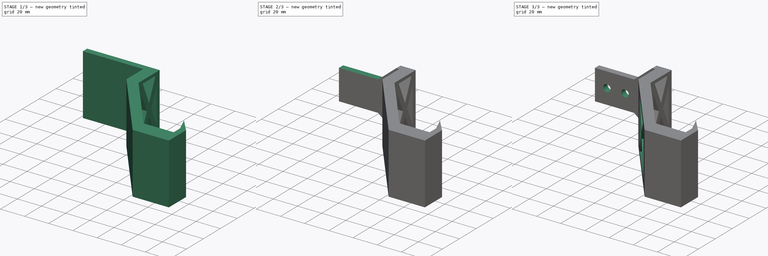
[diagram: build sequence overview — one tinted view per stage of 3, left to right]
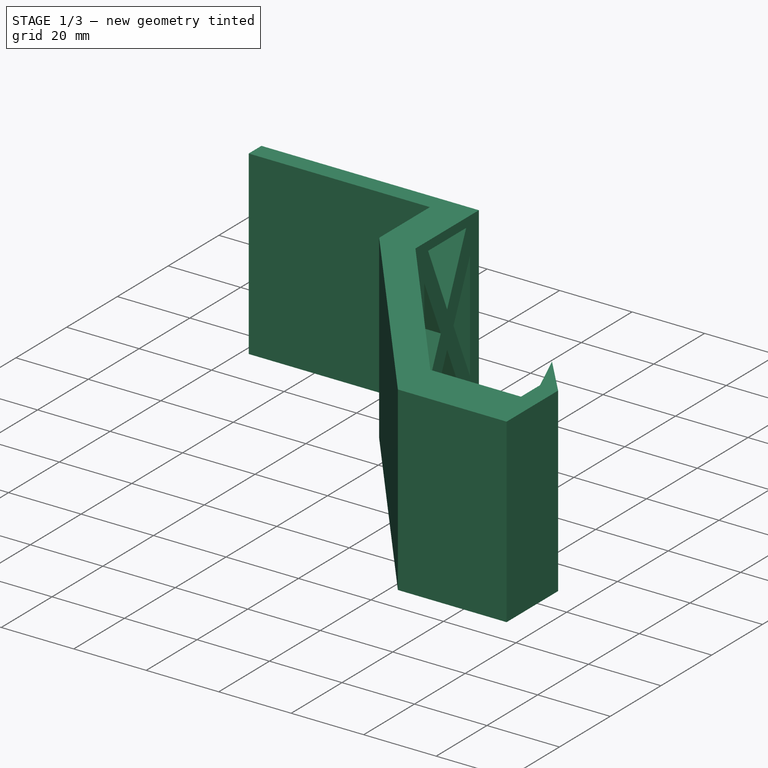
[diagram: stage 1 of 3 — iso view after this stage's code; geometry added in this stage tinted green]
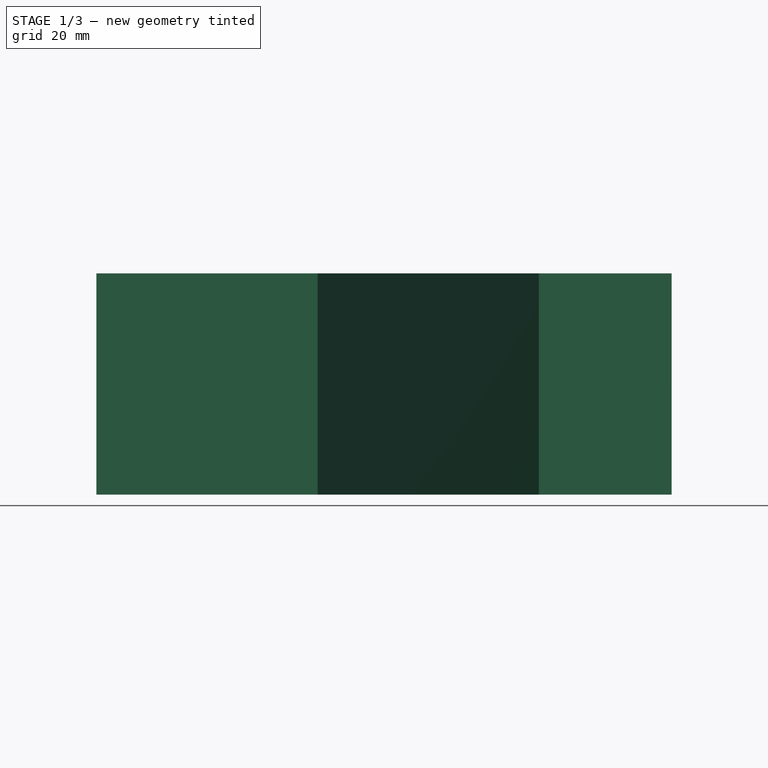
[diagram: stage 1 of 3 — front view after this stage's code; geometry added in this stage tinted green]
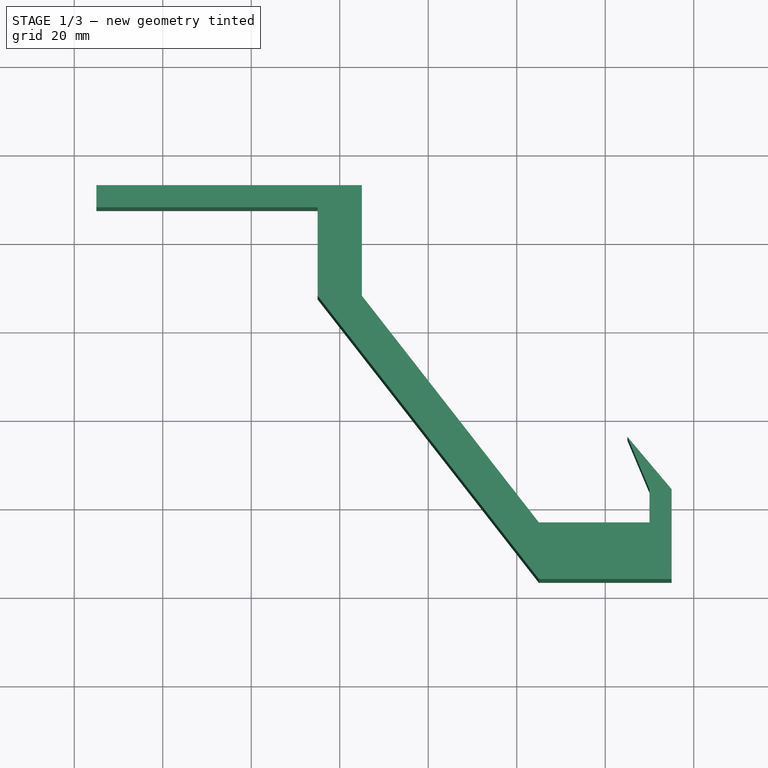
[diagram: stage 1 of 3 — top view after this stage's code; geometry added in this stage tinted green]
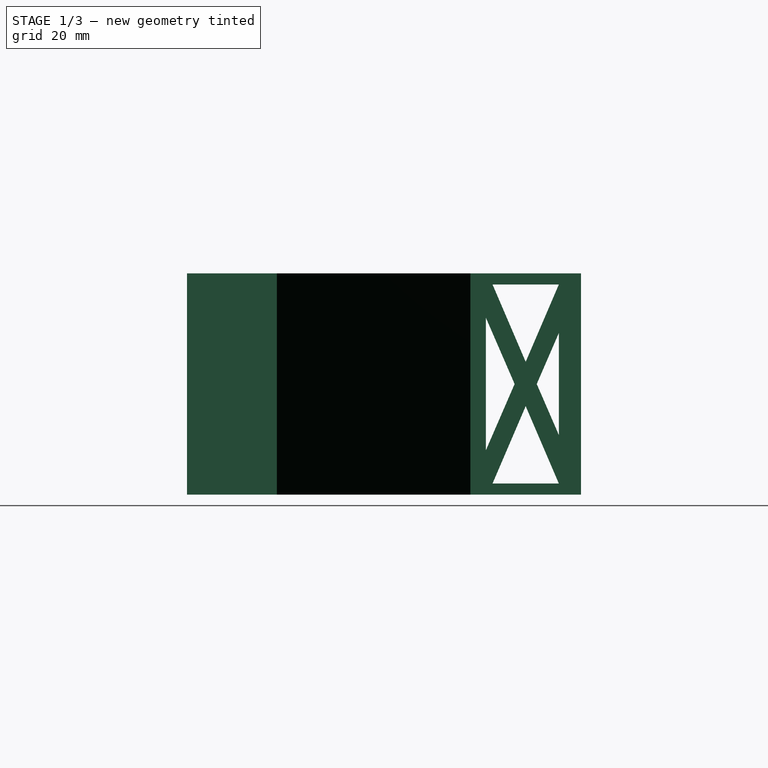
[diagram: stage 1 of 3 — right view after this stage's code; geometry added in this stage tinted green]
FCSTD DOCUMENT  (FreeCAD 0.18R4 (GitTag))
Label: ControllerHolder
License: All rights reserved
LicenseURL: http://en.wikipedia.org/wiki/All_rights_reserved
objects: Sketcher::SketchObject×9, PartDesign::Pocket×4, PartDesign::Pad×1, PartDesign::Hole×1, PartDesign::Body×1, App::MeasureDistance×1
note: 22 computed .brp shape members not serialized (recipe doc carries the construction recipe); baked Part::Feature solids carry a one-line shape summary decoded from their .brp

FEATURE [Sketcher::SketchObject] Sketch
  sketch-geometry (13):
    g0: LineSegment StartX=5 StartY=92.5 StartZ=0 EndX=65 EndY=92.5 EndZ=0
    g1: LineSegment StartX=5 StartY=92.5 StartZ=0 EndX=5 EndY=87.5 EndZ=0
    g2: LineSegment StartX=55 StartY=87.5 StartZ=0 EndX=5 EndY=87.5 EndZ=0
    g3: LineSegment StartX=55 StartY=87.5 StartZ=0 EndX=55 EndY=67.5 EndZ=0
    g4: LineSegment StartX=65 StartY=67.5 StartZ=0 EndX=105 EndY=16.2652 EndZ=0
    g5: LineSegment StartX=105 StartY=16.2652 StartZ=0 EndX=130 EndY=16.2652 EndZ=0
    g6: LineSegment StartX=130 StartY=16.2652 StartZ=0 EndX=130 EndY=23.7652 EndZ=0
    g7: LineSegment StartX=125 StartY=35.6302 StartZ=0 EndX=130 EndY=23.7652 EndZ=0
    g8: LineSegment StartX=65 StartY=67.5 StartZ=0 EndX=65 EndY=92.5 EndZ=0
    g9: LineSegment StartX=55 StartY=67.5 StartZ=0 EndX=105 EndY=3.45656 EndZ=0
    g10: LineSegment StartX=135 StartY=3.45656 StartZ=0 EndX=105 EndY=3.45656 EndZ=0
    g11: LineSegment StartX=135 StartY=3.45656 StartZ=0 EndX=135 EndY=23.7652 EndZ=0
    g12: LineSegment StartX=135 StartY=23.7652 StartZ=0 EndX=125 EndY=35.6302 EndZ=0
  constraints (39):
    c: DistanceX(g-1,g0) = 5
    c: DistanceY(g-1,g0) = 92.5
    c: DistanceX(g0,g0) = 60
    c: Horizontal(g0)
    c: Vertical(g1)
    c: DistanceY(g1,g1) = 5
    c: Coincident(g1,g0)
    c: Coincident(g2,g1)
    c: DistanceX(g2,g2) = 50
    c: Horizontal(g2)
    c: Coincident(g3,g2)
    c: Vertical(g3)
    c: DistanceY(g3,g3) = 20
    c: Distance(g4) = 65
    c: Coincident(g5,g4)
    c: Horizontal(g5)
    c: DistanceX(g5,g5) = 25
    c: Coincident(g6,g5)
    c: Vertical(g6)
    c: DistanceY(g6,g6) = 7.5
    c: Coincident(g7,g6)
    c: DistanceX(g7,g6) = 5
    c: Coincident(g8,g0)
    c: Parallel(g8,g3)
    c: DistanceY(g3,g8) = 0
    c: Coincident(g8,g4)
    c: Parallel(g4,g9)
    c: Coincident(g9,g3)
    c: DistanceX(g9,g4) = 0
    c: Parallel(g5,g10)
    c: Coincident(g9,g10)
    c: DistanceX(g10,g10) = 30
    c: Coincident(g11,g10)
    c: Parallel(g6,g11)
    c: DistanceY(g6,g11) = 0
    c: Coincident(g12,g7)
    c: Coincident(g12,g11)
    c: DistanceX(g3,g9) = 50
    c: Distance(g7,g5) = 20
FEATURE [PartDesign::Pad] Pad
  Length = 50
  Length2 = 100
  Profile = -> Sketch
  Type = 0
FEATURE [Sketcher::SketchObject] Sketch001
  Placement = pos=(0,0,0) rot=(1,0,0;1.5708rad)
  sketch-geometry (2):
    g0: Circle CenterX=15 CenterY=25 CenterZ=0 NormalX=0 NormalY=0 NormalZ=1 AngleXU=0 Radius=5
    g1: Circle CenterX=30 CenterY=25 CenterZ=0 NormalX=0 NormalY=0 NormalZ=1 AngleXU=0 Radius=5
  constraints (6):
    c: DistanceY(g-1,g0) = 25
    c: DistanceX(g-1,g0) = 15
    c: Radius(g0) = 5
    c: Equal(g1,g0)
    c: DistanceX(g-1,g1) = 30
    c: DistanceY(g-1,g1) = 25
FEATURE [Sketcher::SketchObject] Sketch003
  MapMode = 5
  Placement = pos=(0,92.5,0) rot=(0,0.707107,0.707107;3.14159rad)
  sketch-geometry (4):
    g0: LineSegment StartX=-52.5 StartY=0 StartZ=0 EndX=-37.5 EndY=12.5 EndZ=0
    g1: LineSegment StartX=-5 StartY=12.5 StartZ=0 EndX=-37.5 EndY=12.5 EndZ=0
    g2: LineSegment StartX=-5 StartY=12.5 StartZ=0 EndX=-5 EndY=0 EndZ=0
    g3: LineSegment StartX=-52.5 StartY=0 StartZ=0 EndX=-5 EndY=0 EndZ=0
  constraints (12):
    c: Coincident(g0,g1)
    c: Coincident(g0,g3)
    c: Coincident(g1,g2)
    c: Coincident(g2,g3)
    c: DistanceX(g1,g-1) = 5
    c: DistanceX(g3,g3) = 47.5
    c: DistanceX(g1,g1) = 32.5
    c: DistanceX(g2,g-1) = 5
    c: Horizontal(g3)
    c: Parallel(g1,g3)
    c: DistanceY(g2,g2) = 12.5
    c: DistanceY(g2,g-1) = 0
FEATURE [Sketcher::SketchObject] Sketch004
  MapMode = 5
  Placement = pos=(65,0,0) rot=(0.57735,0.57735,0.57735;2.0944rad)
FEATURE [Sketcher::SketchObject] Sketch005
  MapMode = 5
  Placement = pos=(65,0,0) rot=(0.57735,0.57735,0.57735;2.0944rad)
  sketch-geometry (12):
    g0: LineSegment StartX=72.5 StartY=47.5 StartZ=0 EndX=87.5 EndY=47.5 EndZ=0
    g1: LineSegment StartX=72.5 StartY=47.5 StartZ=0 EndX=80 EndY=30 EndZ=0
    g2: LineSegment StartX=87.5 StartY=47.5 StartZ=0 EndX=80 EndY=30 EndZ=0
    g3: LineSegment StartX=80 StartY=20 StartZ=0 EndX=72.5 EndY=2.5 EndZ=0
    g4: LineSegment StartX=87.5 StartY=2.5 StartZ=0 EndX=80 EndY=20 EndZ=0
    g5: LineSegment StartX=72.5 StartY=2.5 StartZ=0 EndX=87.5 EndY=2.5 EndZ=0
    g6: LineSegment StartX=71 StartY=40 StartZ=0 EndX=77.5 EndY=25 EndZ=0
    g7: LineSegment StartX=71 StartY=10 StartZ=0 EndX=77.5 EndY=25 EndZ=0
    g8: LineSegment StartX=71 StartY=40 StartZ=0 EndX=71 EndY=10 EndZ=0
    g9: LineSegment StartX=82.5 StartY=25 StartZ=0 EndX=89 EndY=40 EndZ=0
    g10: LineSegment StartX=82.5 StartY=25 StartZ=0 EndX=89 EndY=10 EndZ=0
    g11: LineSegment StartX=89 StartY=10 StartZ=0 EndX=89 EndY=40 EndZ=0
  constraints (36):
    c: Coincident(g1,g0)
    c: Coincident(g2,g0)
    c: Coincident(g1,g2)
    c: Equal(g2,g1)
    c: DistanceX(g-1,g1) = 80
    c: DistanceY(g-1,g1) = 30
    c: DistanceY(g-1,g0) = 47.5
    c: DistanceX(g-1,g0) = 72.5
    c: DistanceX(g-1,g0) = 87.5
    c: Coincident(g3,g5)
    c: Coincident(g3,g4)
    c: Coincident(g4,g5)
    c: Equal(g4,g3)
    c: Equal(g4,g2)
    c: Equal(g5,g0)
    c: DistanceX(g-1,g3) = 72.5
    c: DistanceX(g3) = 80
    c: DistanceY(g3) = 20
    c: Coincident(g6,g7)
    c: Coincident(g6,g8)
    c: Coincident(g8,g7)
    c: Coincident(g9,g10)
    c: Coincident(g11,g9)
    c: Coincident(g10,g11)
    c: Equal(g9,g10)
    c: Equal(g10,g7)
    c: Equal(g7,g6)
    c: Equal(g8,g11)
    c: DistanceY(g-1,g6) = 25
    c: DistanceY(g-1,g10) = 10
    c: DistanceY(g-1,g9) = 40
    c: DistanceX(g-1,g6) = 77.5
    c: Vertical(g11)
    c: Vertical(g8)
    c: DistanceX(g1,g9) = 2.5
    c: DistanceX(g-1,g7) = 71
FEATURE [Sketcher::SketchObject] Sketch002
  MapMode = 5
  Placement = pos=(0,92.5,0) rot=(0,0.707107,0.707107;3.14159rad)
  sketch-geometry (4):
    g0: LineSegment StartX=-52.5 StartY=50 StartZ=0 EndX=-37.5 EndY=37.5 EndZ=0
    g1: LineSegment StartX=-5 StartY=37.5 StartZ=0 EndX=-37.5 EndY=37.5 EndZ=0
    g2: LineSegment StartX=-5 StartY=37.5 StartZ=0 EndX=-5 EndY=50 EndZ=0
    g3: LineSegment StartX=-52.5 StartY=50 StartZ=0 EndX=-5 EndY=50 EndZ=0
  constraints (12):
    c: Coincident(g0,g1)
    c: Coincident(g0,g3)
    c: Coincident(g1,g2)
    c: Coincident(g2,g3)
    c: DistanceX(g1,g-1) = 5
    c: DistanceY(g-1,g1) = 37.5
    c: DistanceY(g2,g2) = 12.5
    c: DistanceX(g3,g3) = 47.5
    c: DistanceX(g1,g1) = 32.5
    c: DistanceY(g0,g0) = 12.5
    c: DistanceY(g-1,g0) = 37.5
    c: DistanceX(g2,g-1) = 5
FEATURE [PartDesign::Pocket] Pocket
  BaseFeature = -> Pad
  Length = 10
  Length2 = 100
  Profile = -> Sketch005
  Type = 0
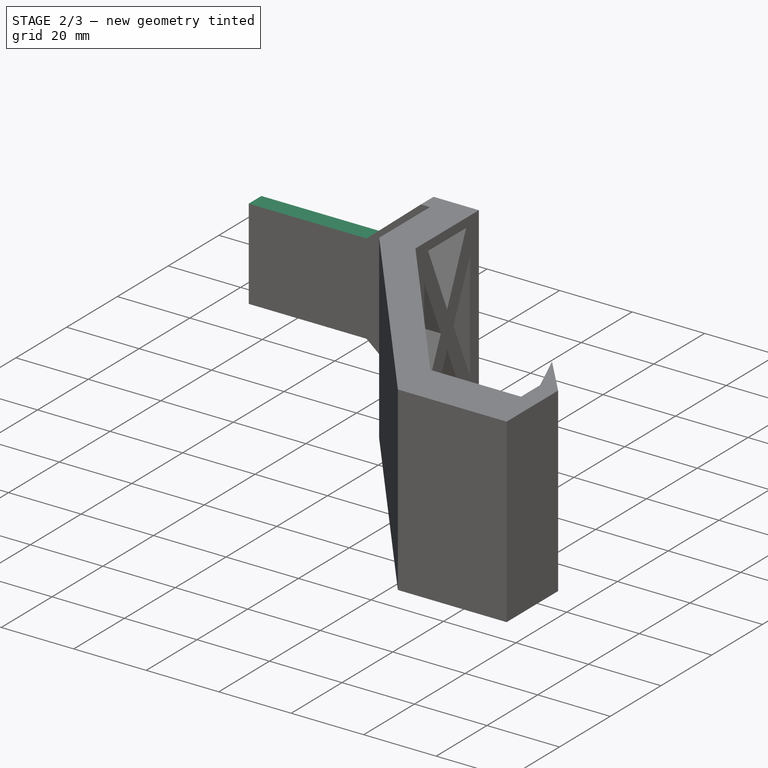
[diagram: stage 2 of 3 — iso view after this stage's code; geometry added in this stage tinted green]
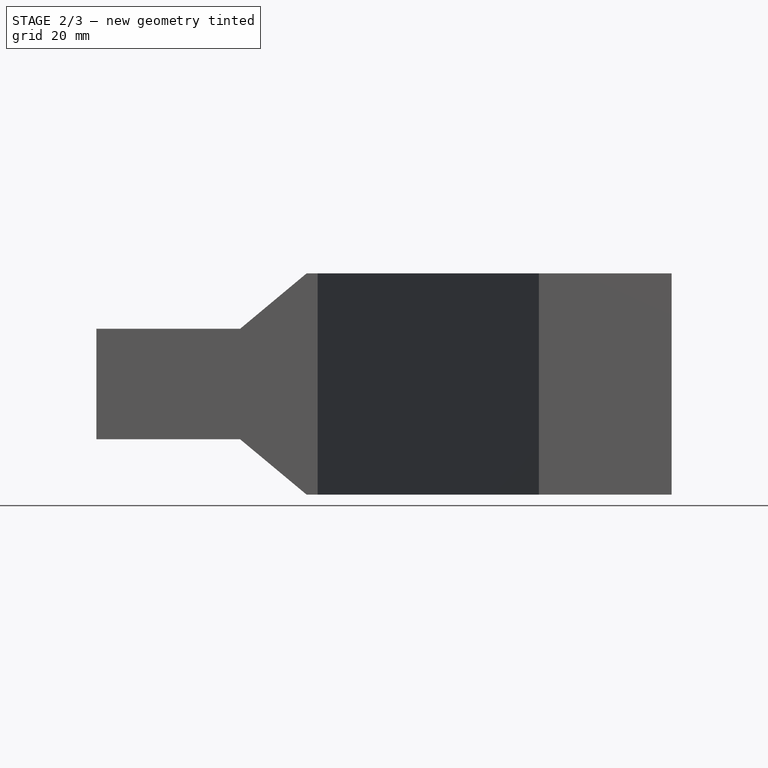
[diagram: stage 2 of 3 — front view after this stage's code; geometry added in this stage tinted green]
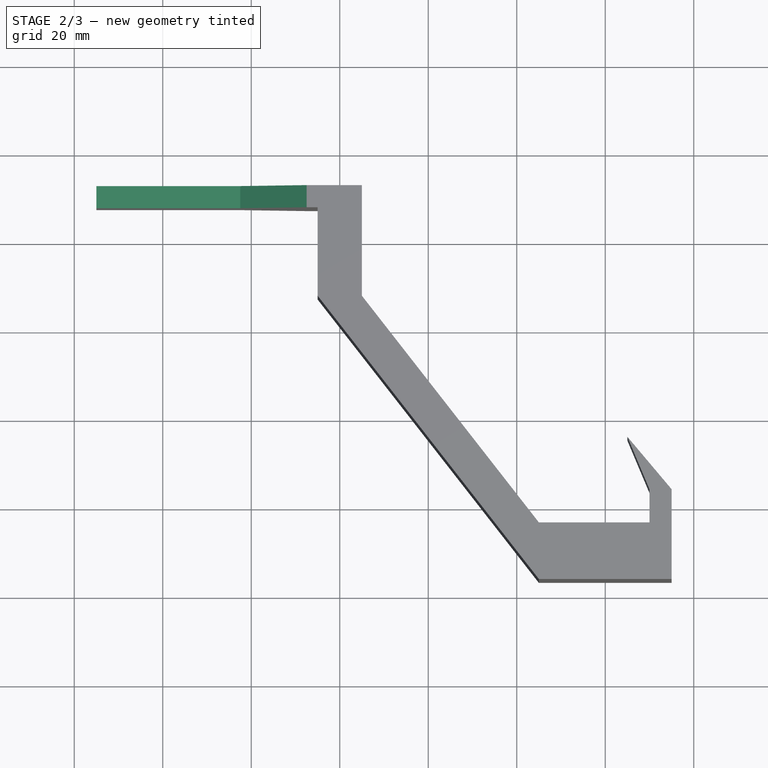
[diagram: stage 2 of 3 — top view after this stage's code; geometry added in this stage tinted green]
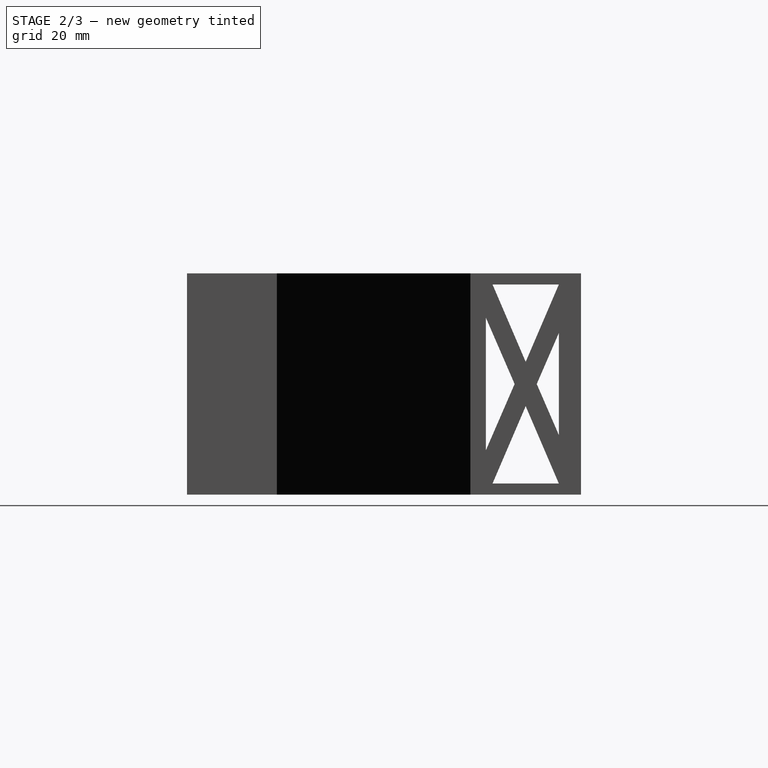
[diagram: stage 2 of 3 — right view after this stage's code; geometry added in this stage tinted green]
FEATURE [PartDesign::Pocket] Pocket001
  BaseFeature = -> Pocket
  Length = 5
  Length2 = 100
  Profile = -> Sketch002
  Type = 0
FEATURE [PartDesign::Pocket] Pocket002
  BaseFeature = -> Pocket001
  Length = 5
  Length2 = 100
  Profile = -> Sketch003
  Type = 0
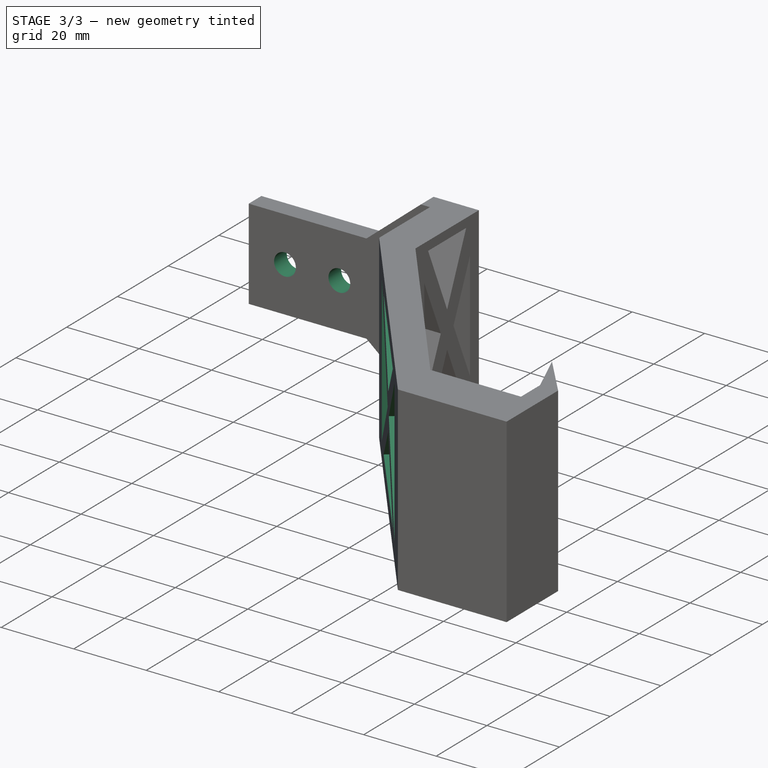
[diagram: stage 3 of 3 — iso view after this stage's code; geometry added in this stage tinted green]
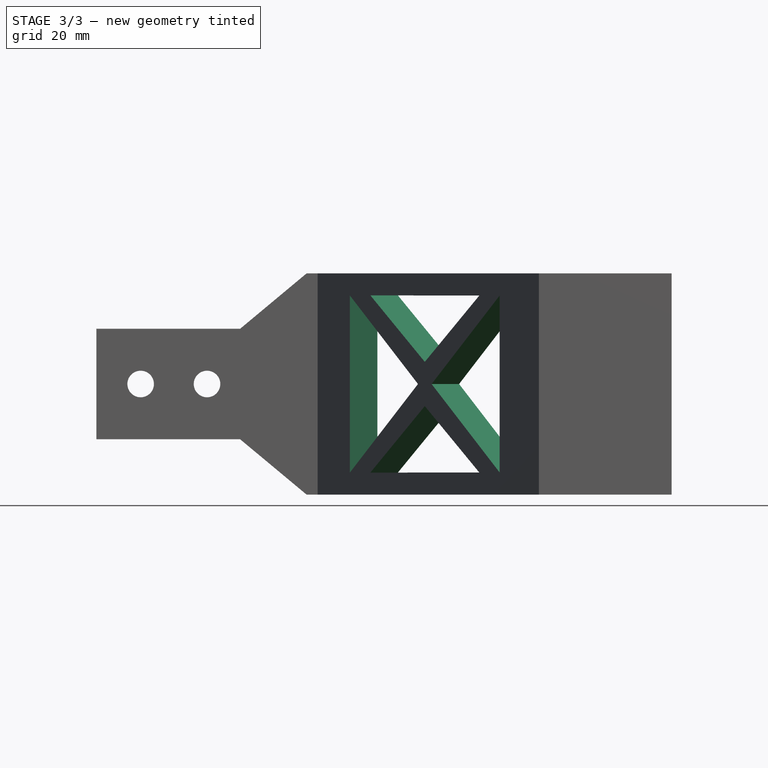
[diagram: stage 3 of 3 — front view after this stage's code; geometry added in this stage tinted green]
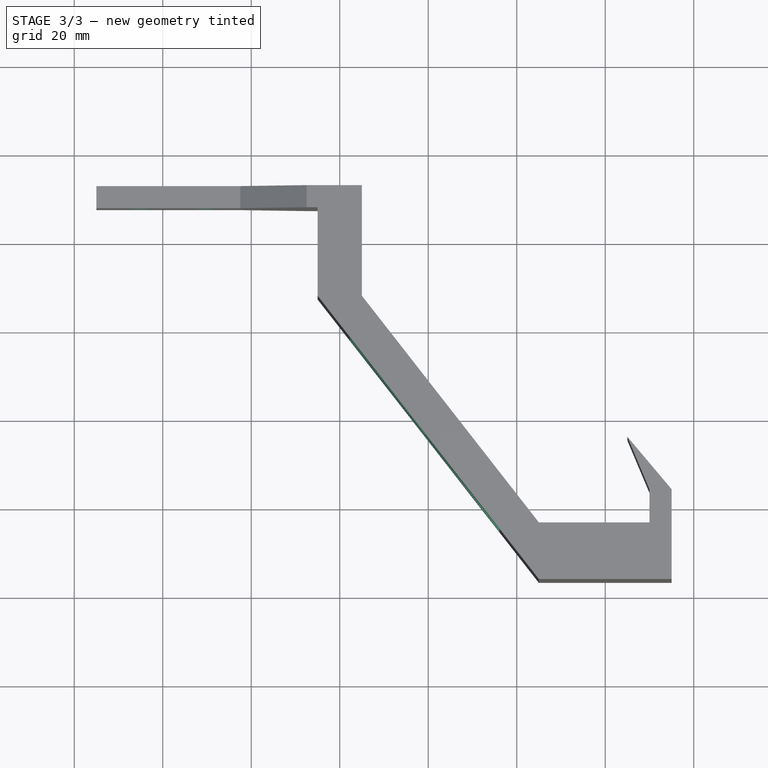
[diagram: stage 3 of 3 — top view after this stage's code; geometry added in this stage tinted green]
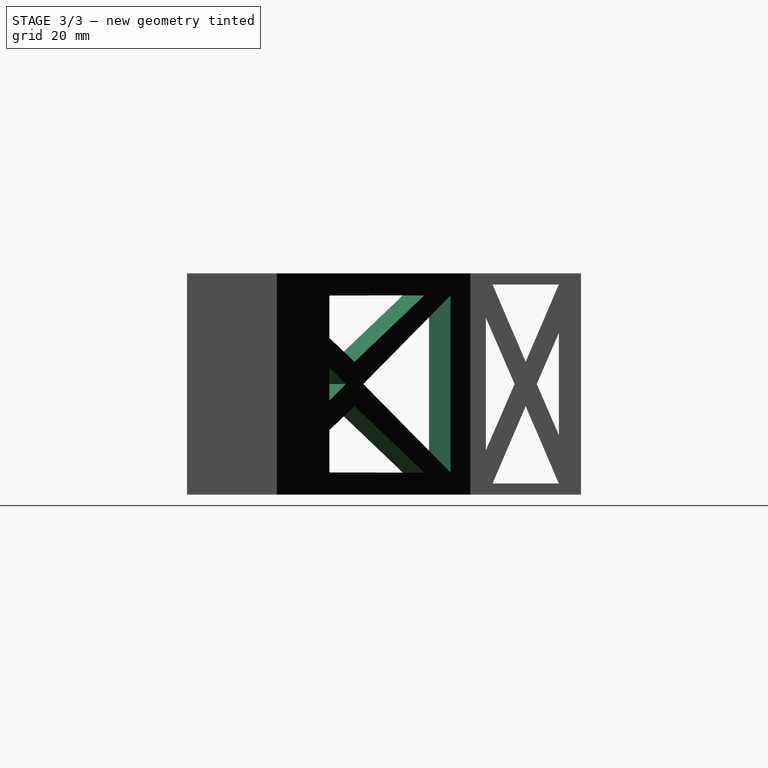
[diagram: stage 3 of 3 — right view after this stage's code; geometry added in this stage tinted green]
FEATURE [Sketcher::SketchObject] Sketch006
  MapMode = 5
  Placement = pos=(73.1264,57.0912,0) rot=(0.326164,0.668437,0.668437;2.51102rad)
  Support = -> [Pocket002]
FEATURE [Sketcher::SketchObject] Sketch007
  MapMode = 5
  Placement = pos=(73.1264,57.0912,0) rot=(0.326164,0.668437,0.668437;2.51102rad)
  Support = -> [Pocket002]
FEATURE [Sketcher::SketchObject] Sketch008
  MapMode = 5
  Placement = pos=(73.1264,57.0912,0) rot=(0.326164,0.668437,0.668437;2.51102rad)
  Support = -> [Pocket002]
  sketch-geometry (12):
    g0: LineSegment StartX=7.5 StartY=5 StartZ=0 EndX=7.5 EndY=45 EndZ=0
    g1: LineSegment StartX=7.5 StartY=45 StartZ=0 EndX=-17.5 EndY=25 EndZ=0
    g2: LineSegment StartX=-17.5 StartY=25 StartZ=0 EndX=7.5 EndY=5 EndZ=0
    g3: LineSegment StartX=-47.5 StartY=5 StartZ=0 EndX=-47.5 EndY=45 EndZ=0
    g4: LineSegment StartX=-47.5 StartY=45 StartZ=0 EndX=-22.5 EndY=25 EndZ=0
    g5: LineSegment StartX=-22.5 StartY=25 StartZ=0 EndX=-47.5 EndY=5 EndZ=0
    g6: LineSegment StartX=-0.005547 StartY=45.0321 StartZ=0 EndX=-40.0241 EndY=44.9926 EndZ=0
    g7: LineSegment StartX=-40.0241 StartY=44.9926 StartZ=0 EndX=-20 EndY=30 EndZ=0
    g8: LineSegment StartX=-0.005547 StartY=45.0321 StartZ=0 EndX=-20 EndY=30 EndZ=0
    g9: LineSegment StartX=-20 StartY=20 StartZ=0 EndX=0 EndY=4.97527 EndZ=0
    g10: LineSegment StartX=-20 StartY=20 StartZ=0 EndX=-40.0186 EndY=5 EndZ=0
    g11: LineSegment StartX=-40.0186 StartY=5 StartZ=0 EndX=0 EndY=4.97527 EndZ=0
  constraints (36):
    c: DistanceX(g0) = 7.5
    c: DistanceY(g0) = 5
    c: Coincident(g0,g2)
    c: Coincident(g0,g1)
    c: Coincident(g1,g2)
    c: Equal(g2,g1)
    c: DistanceY(g0,g0) = 40
    c: DistanceX(g-1,g0) = 7.5
    c: DistanceX(g1,g0) = 25
    c: Coincident(g5,g3)
    c: Coincident(g3,g4)
    c: Coincident(g4,g5)
    c: Equal(g5,g4)
    c: Equal(g3,g0)
    c: Equal(g2,g5)
    c: DistanceY(g4,g1) = 0
    c: DistanceY(g-1,g3) = 5
    c: DistanceX(g4,g1) = 5
    c: Coincident(g6,g8)
    c: Coincident(g6,g7)
    c: Coincident(g7,g8)
    c: Equal(g8,g7)
    c: DistanceX(g7) = -20
    c: DistanceY(g7) = 30
    c: Coincident(g9,g10)
    c: Coincident(g9,g11)
    c: Coincident(g10,g11)
    c: Equal(g9,g10)
    c: Equal(g9,g8)
    c: Equal(g6,g11)
    c: DistanceX(g9) = -20
    c: DistanceY(g9) = 20
    c: DistanceX(g9) = 0
    c: DistanceX(g6) = -0.005547
    c: DistanceY(g6) = 45.0321
    c: DistanceY(g-1,g10) = 5
FEATURE [PartDesign::Pocket] Pocket003
  BaseFeature = -> Pocket002
  Length = 5
  Length2 = 100
  Profile = -> Sketch008
  Type = 1
FEATURE [PartDesign::Hole] Hole
  BaseFeature = -> Pocket003
  Depth = 25
  DepthType = 1
  Diameter = 6
  DrillPoint = 1
  DrillPointAngle = 118
  HoleCutCountersinkAngle = 90
  HoleCutDepth = 0
  HoleCutDiameter = 0
  HoleCutType = 0
  ModelActualThread = false
  Profile = -> Sketch001
  Tapered = false
  TaperedAngle = 90
  ThreadAngle = 0
  ThreadClass = 0
  ThreadCutOffInner = 0
  ThreadCutOffOuter = 0
  ThreadDirection = 0
  ThreadFit = 0
  ThreadPitch = 0
  ThreadSize = 0
  ThreadType = 0
  Threaded = false
FEATURE [PartDesign::Body] Body
  Group = -> [Sketch,Sketch001,Pad,Sketch002,Sketch003,Sketch004,Sketch005,Pocket,Pocket001,Pocket002,Sketch006,Sketch007,Sketch008,Pocket003,Hole]
  Origin = -> Origin
  Tip = -> Hole
FEATURE [App::MeasureDistance] Distance  label="Distance: 16.92 mm"
  Distance = 16.9161
  P1 = (125,32.4255,0)
  P2 = (130,16.2652,0)
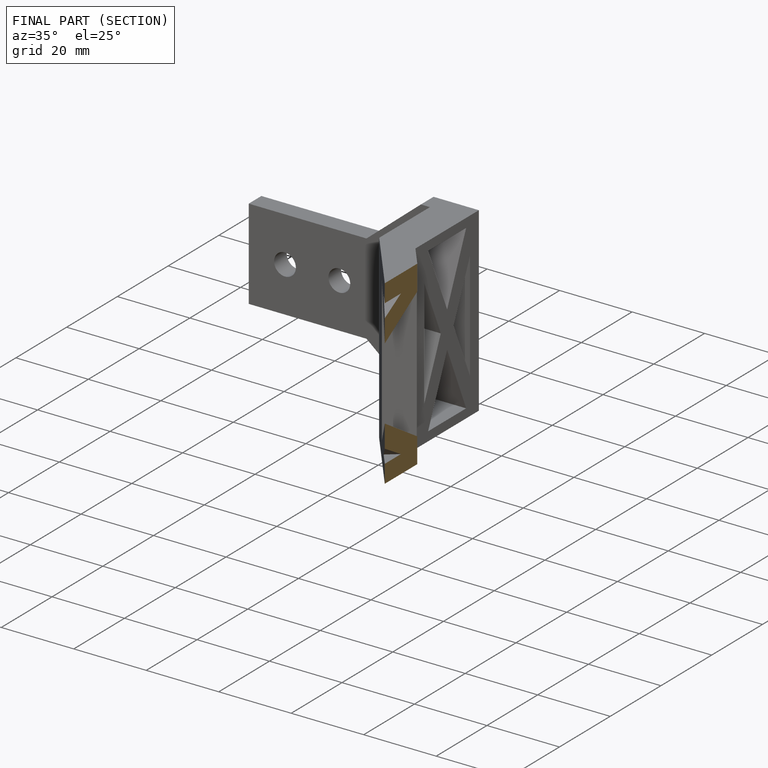
[diagram: finished part — half-section view (interior)]
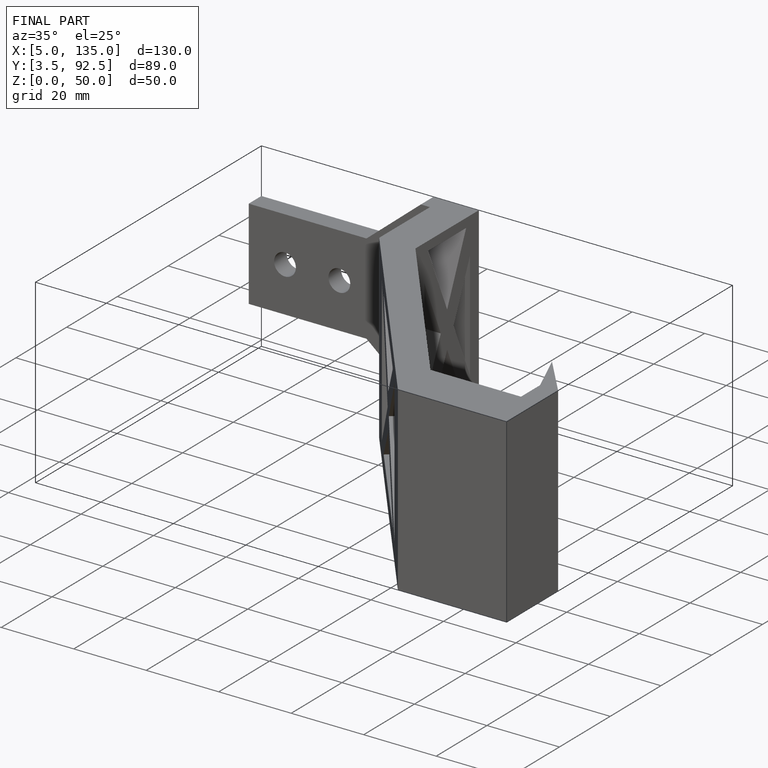
[diagram: finished part — iso view with bounding-box wireframe]
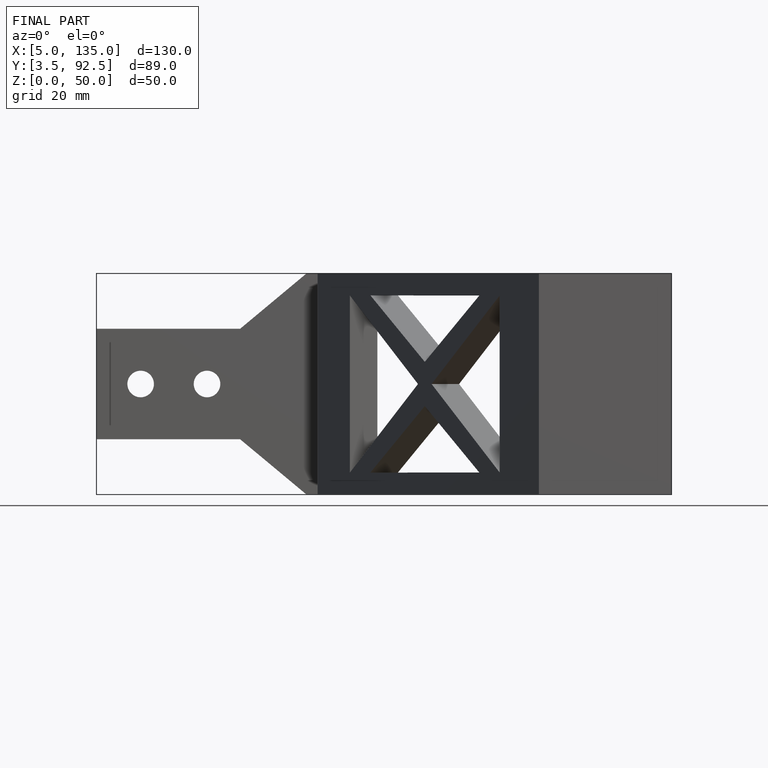
[diagram: finished part — front view with bounding-box wireframe]
